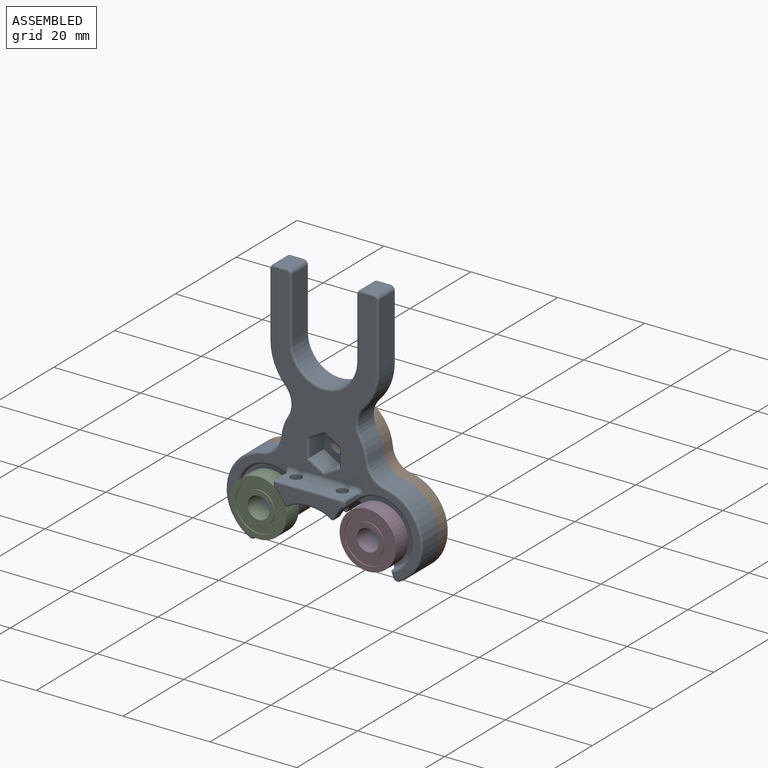
[diagram: assembled view]
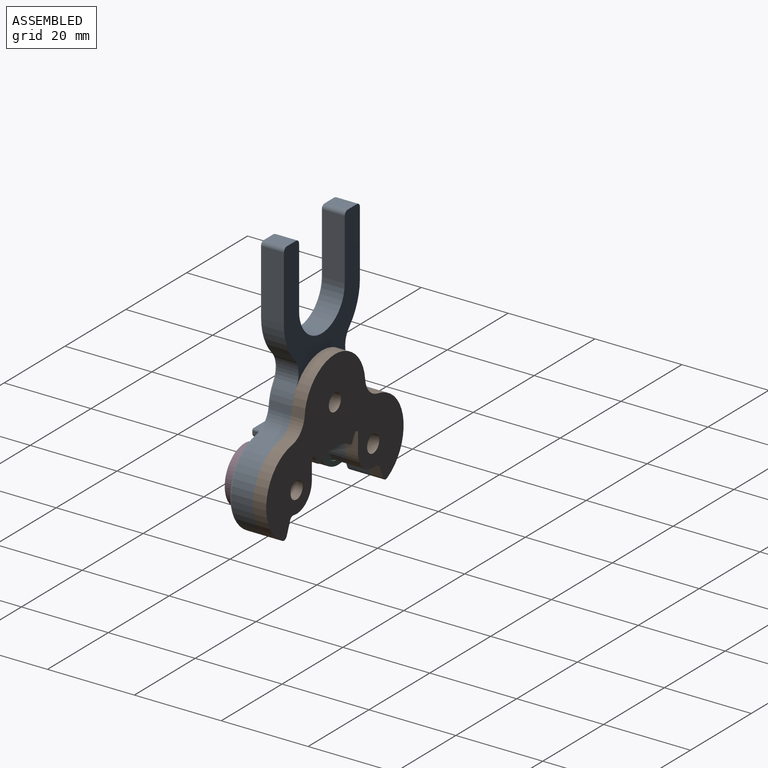
[diagram: assembled view, second angle]
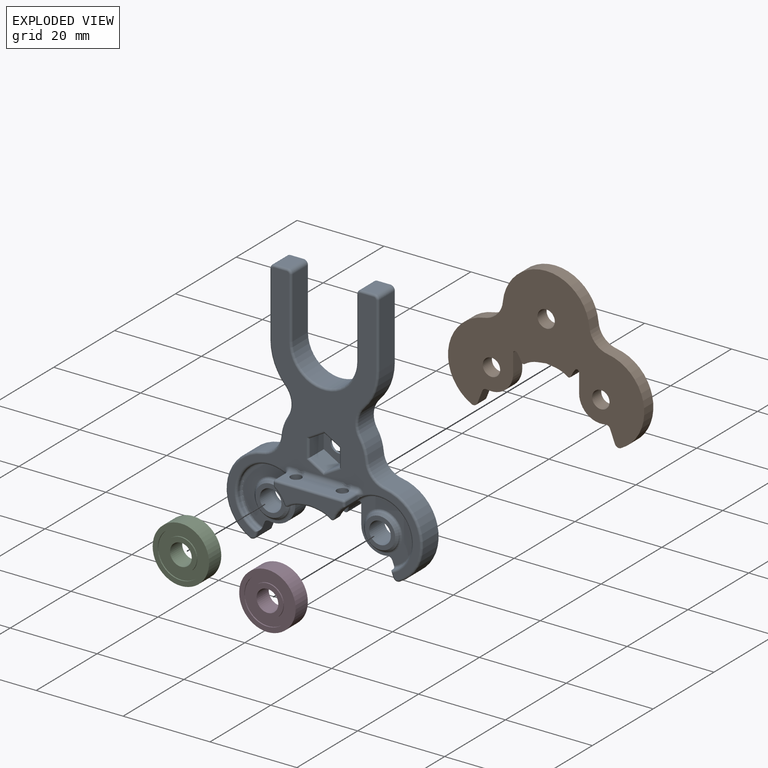
[diagram: exploded view]
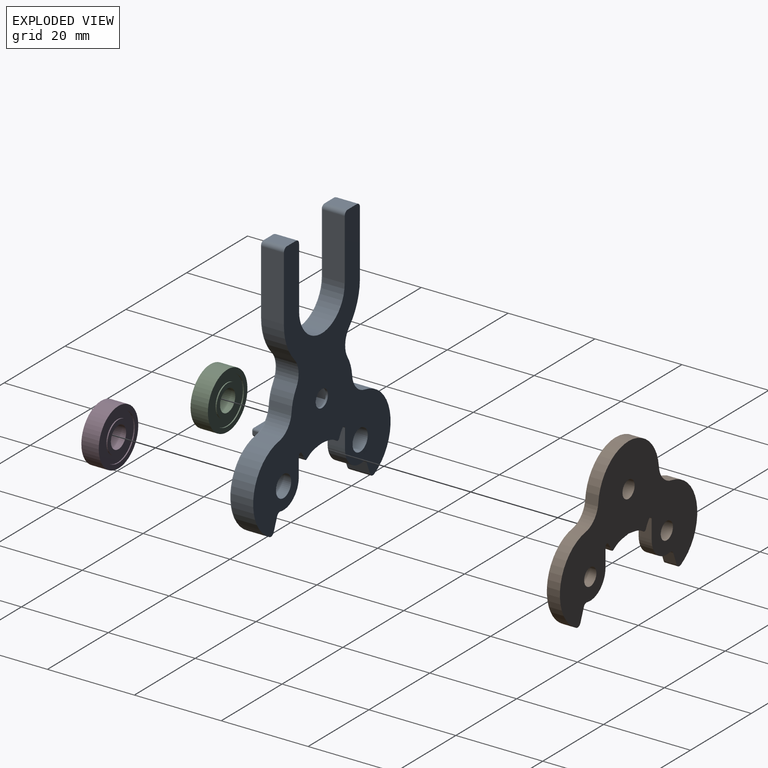
[diagram: exploded view, second angle]
ASSEMBLY  parts=4 mates=3
PART A: 138 faces, bbox 46.8x10.5x59.1 mm
  f0: cylinder r=6.5mm len=10mm, axis (0,1,0), area 30.2mm2, adj f14,f15,f26,f52,f55,f69
  f1: cylinder r=7.5mm len=14.49mm, axis (0,1,0), area 39.8mm2, adj f6,f15,f26,f52,f54,f55,f56,f65
  f2: plane 57.44x44.18mm, normal (0,-1,0), area 543.8mm2, adj f86,f87,f88,f89,f90,f91,f92,f93
  f3: cylinder r=2mm len=4mm, axis (0,1,0), area 6.3mm2, adj f15,f21
  f4: plane 4.33x4mm, normal (-1,0,0), area 17.3mm2, adj f5,f15,f16,f56
  f5: cylinder r=5mm len=6mm, axis (0,1,0), area 35.5mm2, adj f4,f15,f16,f85
  f6: plane 5x2.82mm, normal (-0.93,0,-0.36), area 13.6mm2, adj f1,f15,f16,f82,f85,f112,f116
  f7: cylinder r=10mm len=18.74mm, axis (0,1,0), area 125.2mm2, adj f15,f77,f82,f109
  f8: cylinder r=10mm len=5mm, axis (0,1,0), area 23.7mm2, adj f15,f76,f77,f107
  f9: cylinder r=12.5mm len=8.64mm, axis (0,1,0), area 47.7mm2, adj f10,f15,f76,f105
  f10: plane 14.9x5mm, normal (1,0,0), area 74.5mm2, adj f9,f15,f83,f104
  f11: plane 5x3mm, normal (0,0,1), area 15mm2, adj f15,f83,f84,f102
  f12: plane 14x5mm, normal (-1,0,0), area 70mm2, adj f13,f15,f84,f100
  f13: cylinder r=7.5mm len=15mm, axis (0,1,0), area 117.8mm2, adj f12,f15,f37,f99
  f14: plane 10x0.91mm, normal (-0.13,0,-0.99), area 9.2mm2, adj f0,f15,f71,f72
  f15: plane 58.44x45.18mm, normal (0,1,0), area 1026.7mm2, adj f0,f1,f3,f4,f5,f6,f7,f8
  f16: plane 13.53x12.18mm, normal (0,-1,0), area 60.5mm2, adj f4,f5,f6,f56,f85,f115,f116
  f17: plane 7x7mm, normal (0,-1,0), area 18.8mm2, adj f22,f131
  f18: plane 4.5x3.5mm, normal (-0.5,0,-0.87), area 18.2mm2, adj f20,f21,f41,f136
  f19: plane 4.5x3.5mm, normal (-0.5,0,0.87), area 18.2mm2, adj f20,f21,f42,f132
  f20: plane 4.5x4.04mm, normal (-1,0,0), area 18.2mm2, adj f18,f19,f21,f134
  f21: plane 8.08x7mm, normal (0,-1,0), area 29.9mm2, adj f3,f18,f19,f20,f41,f42,f43
  f22: cylinder r=2.5mm len=5mm, axis (0,-1,0), area 78.5mm2, adj f15,f17
  f23: plane 3.74x0.73mm, normal (1,0,0), area 2.6mm2, adj f53,f54,f61,f128
  f24: plane 15.46x3.5mm, normal (0,0,1), area 46.8mm2, adj f26,f46,f47,f53,f57,f121,f123,f125
  f25: plane 15.46x3.95mm, normal (0,-1,0), area 40.8mm2, adj f57,f60,f61,f64,f65,f68,f69,f70
  f26: cylinder r=1.25mm len=4.95mm, axis (0,0,1), area 33mm2, adj f0,f1,f24,f52,f55,f124
  f27: cylinder r=6.5mm len=10mm, axis (0,1,0), area 30.2mm2, adj f15,f38,f46,f50,f51,f68
  f28: cylinder r=7.5mm len=14.49mm, axis (0,1,0), area 39.8mm2, adj f15,f31,f46,f48,f49,f50,f51,f64
  f29: plane 4.33x4mm, normal (1,0,0), area 17.3mm2, adj f15,f30,f39,f49
  f30: cylinder r=5mm len=6mm, axis (0,1,0), area 35.5mm2, adj f15,f29,f39,f80
  f31: plane 5x2.82mm, normal (0.93,0,-0.36), area 13.6mm2, adj f15,f28,f39,f80,f81,f87,f113
  f32: cylinder r=10mm len=18.74mm, axis (0,1,0), area 125.2mm2, adj f15,f75,f81,f89
  f33: cylinder r=10mm len=5mm, axis (0,1,0), area 23.7mm2, adj f15,f74,f75,f91
  f34: cylinder r=12.5mm len=8.64mm, axis (0,1,0), area 47.7mm2, adj f15,f35,f74,f93
  f35: plane 14.9x5mm, normal (-1,0,0), area 74.5mm2, adj f15,f34,f78,f94
  f36: plane 5x3mm, normal (0,0,1), area 15mm2, adj f15,f78,f79,f96
  f37: plane 14x5mm, normal (1,0,0), area 70mm2, adj f13,f15,f79,f98
  f38: plane 10x0.91mm, normal (0.13,0,-0.99), area 9.2mm2, adj f15,f27,f70,f72
  f39: plane 13.53x12.18mm, normal (0,-1,0), area 60.5mm2, adj f29,f30,f31,f49,f80,f113,f114
  f40: plane 7x7mm, normal (0,-1,0), area 18.8mm2, adj f44,f130
  f41: plane 4.5x3.5mm, normal (0.5,0,-0.87), area 18.2mm2, adj f18,f21,f43,f137
  f42: plane 4.5x3.5mm, normal (0.5,0,0.87), area 18.2mm2, adj f19,f21,f43,f133
  f43: plane 4.5x4.04mm, normal (1,0,0), area 18.2mm2, adj f21,f41,f42,f135
  f44: cylinder r=2.5mm len=5mm, axis (0,-1,0), area 78.5mm2, adj f15,f40
  f45: plane 3.74x0.73mm, normal (-1,0,0), area 2.6mm2, adj f47,f48,f60,f118
  f46: cylinder r=1.25mm len=4.95mm, axis (0,0,1), area 33mm2, adj f24,f27,f28,f50,f51,f122
  f47: cylinder r=0.5mm len=3.51mm, axis (0,-1,0), area 2.7mm2, adj f24,f45,f58,f119,f120
  f48: cylinder r=0.5mm len=5mm, axis (0,1,0), area 2mm2, adj f28,f45,f62,f117
  f49: cylinder r=0.5mm len=4.5mm, axis (0,1,0), area 5.2mm2, adj f15,f28,f29,f39,f113
  f50: cylinder r=0.5mm len=5.82mm, axis (0,1,0), area 5.2mm2, adj f15,f27,f28,f46
  f51: cylinder r=0.5mm len=1.82mm, axis (0,1,0), area 1.6mm2, adj f27,f28,f46,f66
  f52: cylinder r=0.5mm len=5.82mm, axis (0,1,0), area 5.2mm2, adj f0,f1,f15,f26
  f53: cylinder r=0.5mm len=3.51mm, axis (0,-1,0), area 2.7mm2, adj f23,f24,f59,f126,f127
  f54: cylinder r=0.5mm len=5mm, axis (0,1,0), area 2mm2, adj f1,f23,f63,f129
  f55: cylinder r=0.5mm len=1.82mm, axis (0,1,0), area 1.6mm2, adj f0,f1,f26,f67
  f56: cylinder r=0.5mm len=4.5mm, axis (0,1,0), area 5.2mm2, adj f1,f4,f15,f16,f116
  f57: cylinder r=0.5mm len=15.46mm, axis (1,0,0), area 12.1mm2, adj f24,f25,f58,f59
  f58: sphere r=0.5mm, area 0.4mm2, adj f47,f57,f60
  f59: sphere r=0.5mm, area 0.4mm2, adj f53,f57,f61
  f60: cylinder r=0.5mm len=0.72mm, axis (0,0,-1), area 0.6mm2, adj f25,f45,f58,f62
  f61: cylinder r=0.5mm len=0.72mm, axis (0,0,-1), area 0.6mm2, adj f23,f25,f59,f63
  f62: sphere r=0.5mm, area 0.2mm2, adj f48,f60,f64
  f63: sphere r=0.5mm, area 0.3mm2, adj f54,f61,f65
  f64: torus R=8mm, axis (0,-1,0), area 3.1mm2, adj f25,f28,f62,f66
  f65: torus R=8mm, axis (0,-1,0), area 3.1mm2, adj f1,f25,f63,f67
  f66: sphere r=0.5mm, area 0.4mm2, adj f51,f64,f68
  f67: sphere r=0.5mm, area 0.4mm2, adj f55,f65,f69
  f68: torus R=7mm, axis (0,-1,0), area 2.6mm2, adj f25,f27,f66,f70
  f69: torus R=7mm, axis (0,-1,0), area 2.6mm2, adj f0,f25,f67,f71
  f70: cylinder r=0.5mm len=2.12mm, axis (0.99,0,0.13), area 1.1mm2, adj f25,f38,f68,f73
  f71: cylinder r=0.5mm len=2.12mm, axis (-0.99,0,0.13), area 1.1mm2, adj f14,f25,f69,f73
  f72: cylinder r=8mm len=10mm, axis (0,-1,0), area 21.6mm2, adj f14,f15,f38,f73
  f73: bspline ~2.15x0.65mm, area 1.1mm2, adj f70,f71,f72
  f74: cylinder r=5mm len=6.14mm, axis (0,-1,0), area 33.2mm2, adj f15,f33,f34,f92
  f75: cylinder r=5mm len=5mm, axis (0,-1,0), area 33mm2, adj f15,f32,f33,f90
  f76: cylinder r=5mm len=6.14mm, axis (0,-1,0), area 33.2mm2, adj f8,f9,f15,f106
  f77: cylinder r=5mm len=5mm, axis (0,-1,0), area 33mm2, adj f7,f8,f15,f108
  f78: cylinder r=1mm len=5mm, axis (0,1,0), area 7.9mm2, adj f15,f35,f36,f95
  f79: cylinder r=1mm len=5mm, axis (0,1,0), area 7.9mm2, adj f15,f36,f37,f97
  f80: cylinder r=1mm len=4mm, axis (0,1,0), area 5.6mm2, adj f15,f30,f31,f39
  f81: cylinder r=1mm len=5mm, axis (0,1,0), area 8.4mm2, adj f15,f31,f32,f88
  f82: cylinder r=1mm len=5mm, axis (0,1,0), area 8.4mm2, adj f6,f7,f15,f110
  f83: cylinder r=1mm len=5mm, axis (0,1,0), area 7.9mm2, adj f10,f11,f15,f103
  f84: cylinder r=1mm len=5mm, axis (0,1,0), area 7.9mm2, adj f11,f12,f15,f101
  f85: cylinder r=1mm len=4mm, axis (0,1,0), area 5.6mm2, adj f5,f6,f15,f16
  f86: torus R=8mm, axis (0,-1,0), area 19.7mm2, adj f2,f28,f87,f117,f118,f119
  f87: cylinder r=0.5mm len=1.53mm, axis (0.36,0,0.93), area 0.9mm2, adj f2,f31,f86,f88
  f88: torus R=0.5mm, axis (0,-1,0), area 1.1mm2, adj f2,f81,f87,f89
  f89: torus R=9.5mm, axis (0,-1,0), area 19.3mm2, adj f2,f32,f88,f90
  f90: torus R=5.5mm, axis (0,-1,0), area 5.4mm2, adj f2,f75,f89,f91
  f91: torus R=9.5mm, axis (0,-1,0), area 3.7mm2, adj f2,f33,f90,f92
  f92: torus R=5.5mm, axis (0,-1,0), area 5.4mm2, adj f2,f74,f91,f93
  f93: torus R=12mm, axis (0,-1,0), area 7.4mm2, adj f2,f34,f92,f94
  f94: cylinder r=0.5mm len=14.9mm, axis (0,0,-1), area 11.7mm2, adj f2,f35,f93,f95
  f95: torus R=0.5mm, axis (0,-1,0), area 1mm2, adj f2,f78,f94,f96
  f96: cylinder r=0.5mm len=3mm, axis (-1,0,0), area 2.4mm2, adj f2,f36,f95,f97
  f97: torus R=0.5mm, axis (0,-1,0), area 1mm2, adj f2,f79,f96,f98
  f98: cylinder r=0.5mm len=14mm, axis (0,0,1), area 11mm2, adj f2,f37,f97,f99
  f99: torus R=8mm, axis (0,-1,0), area 19mm2, adj f2,f13,f98,f100
  f100: cylinder r=0.5mm len=14mm, axis (0,0,1), area 11mm2, adj f2,f12,f99,f101
  f101: torus R=0.5mm, axis (0,-1,0), area 1mm2, adj f2,f84,f100,f102
  f102: cylinder r=0.5mm len=3mm, axis (1,0,0), area 2.4mm2, adj f2,f11,f101,f103
  f103: torus R=0.5mm, axis (0,-1,0), area 1mm2, adj f2,f83,f102,f104
  f104: cylinder r=0.5mm len=14.9mm, axis (0,0,-1), area 11.7mm2, adj f2,f10,f103,f105
  f105: torus R=12mm, axis (0,-1,0), area 7.4mm2, adj f2,f9,f104,f106
  f106: torus R=5.5mm, axis (0,-1,0), area 5.4mm2, adj f2,f76,f105,f107
  f107: torus R=9.5mm, axis (0,-1,0), area 3.7mm2, adj f2,f8,f106,f108
  f108: torus R=5.5mm, axis (0,-1,0), area 5.4mm2, adj f2,f77,f107,f109
  f109: torus R=9.5mm, axis (0,-1,0), area 19.3mm2, adj f2,f7,f108,f110
  f110: torus R=0.5mm, axis (0,-1,0), area 1.1mm2, adj f2,f82,f109,f112
  f111: torus R=8mm, axis (0,-1,0), area 19.7mm2, adj f1,f2,f112,f127,f128,f129
  f112: cylinder r=0.5mm len=1.53mm, axis (-0.36,0,0.93), area 0.9mm2, adj f2,f6,f110,f111
  f113: torus R=7mm, axis (0,-1,0), area 20.9mm2, adj f28,f31,f39,f49
  f114: torus R=4.5mm, axis (0,-1,0), area 20.6mm2, adj f39,f130
  f115: torus R=4.5mm, axis (0,-1,0), area 20.6mm2, adj f16,f131
  f116: torus R=7mm, axis (0,-1,0), area 20.9mm2, adj f1,f6,f16,f56
  f117: bspline ~1.38x1mm, area 0.7mm2, adj f48,f86,f118
  f118: bspline ~1.42x1.15mm, area 0.7mm2, adj f45,f86,f117,f119
  f119: bspline ~1.02x1.01mm, area 0.1mm2, adj f47,f86,f118,f120
  f120: torus R=1.5mm, axis (0,-1,0), area 2mm2, adj f2,f47,f119,f121
  f121: cylinder r=1mm len=1.25mm, axis (-1,0,0), area 2mm2, adj f2,f24,f120,f122
  f122: bspline ~2.66x1.07mm, area 2.4mm2, adj f2,f46,f121,f123
  f123: cylinder r=1mm len=8.36mm, axis (-1,0,0), area 13.1mm2, adj f2,f24,f122,f124
  f124: bspline ~2.66x1.07mm, area 2.4mm2, adj f2,f26,f123,f125
  f125: cylinder r=1mm len=1.25mm, axis (-1,0,0), area 2mm2, adj f2,f24,f124,f126
  f126: torus R=1.5mm, axis (0,-1,0), area 2mm2, adj f2,f53,f125,f127
  f127: bspline ~1.03x1.03mm, area 0.1mm2, adj f53,f111,f126,f128
  f128: bspline ~1.21x1.15mm, area 0.7mm2, adj f23,f111,f127,f129
  f129: bspline ~1.38x1mm, area 0.7mm2, adj f54,f111,f128
  f130: cone r=4mm half-angle=45deg, axis (0,1,0), area 16.7mm2, adj f40,f114
  f131: cone r=3.5mm half-angle=45deg, axis (0,1,0), area 16.7mm2, adj f17,f115
  f132: cylinder r=0.5mm len=4.25mm, axis (-0.87,0,-0.5), area 3.4mm2, adj f2,f19,f133,f134
  f133: cylinder r=0.5mm len=4.25mm, axis (0.87,0,-0.5), area 3.4mm2, adj f2,f42,f132,f135
  f134: cylinder r=0.5mm len=4.62mm, axis (0,0,-1), area 3.4mm2, adj f2,f20,f132,f136
  f135: cylinder r=0.5mm len=4.62mm, axis (0,0,-1), area 3.4mm2, adj f2,f43,f133,f137
  f136: cylinder r=0.5mm len=4.25mm, axis (0.87,0,-0.5), area 3.4mm2, adj f2,f18,f134,f137
  f137: cylinder r=0.5mm len=4.25mm, axis (-0.87,0,-0.5), area 3.4mm2, adj f2,f41,f135,f136
PART B: 30 faces, bbox 45.2x3x32.4 mm
  f0: plane 4.33x3mm, normal (-1,0,0), area 13mm2, adj f1,f14,f15,f16
  f1: cylinder r=5mm len=6mm, axis (0,1,0), area 26.6mm2, adj f0,f2,f15,f16
  f2: cylinder r=1mm len=3mm, axis (0,1,0), area 4.2mm2, adj f1,f3,f15,f16
  f3: plane 3x2.82mm, normal (-0.93,0,-0.36), area 9.1mm2, adj f2,f4,f15,f16
  f4: cylinder r=1mm len=3mm, axis (0,1,0), area 5mm2, adj f3,f5,f15,f16
  f5: cylinder r=10mm len=18.74mm, axis (0,1,0), area 75.1mm2, adj f4,f6,f15,f16
  f6: cylinder r=5mm len=4.47mm, axis (0,1,0), area 19.8mm2, adj f5,f7,f15,f16
  f7: cylinder r=10mm len=19.91mm, axis (0,1,0), area 88.7mm2, adj f6,f15,f16,f23
  f8: cylinder r=2mm len=4mm, axis (0,1,0), area 37.7mm2, adj f15,f16
  f9: plane 3x1.99mm, normal (-0.13,0,-0.99), area 6mm2, adj f10,f15,f16,f24
  f10: cylinder r=6.5mm len=3mm, axis (0,1,0), area 9.6mm2, adj f9,f11,f15,f16
  f11: cylinder r=0.5mm len=3mm, axis (0,1,0), area 2.7mm2, adj f10,f12,f15,f16
  f12: cylinder r=7.5mm len=3mm, axis (0,1,0), area 6mm2, adj f11,f14,f15,f16
  f13: cylinder r=2mm len=4mm, axis (0,1,0), area 37.7mm2, adj f15,f16
  f14: cylinder r=0.5mm len=3mm, axis (0,1,0), area 3.7mm2, adj f0,f12,f15,f16
  f15: plane 45.18x32.4mm, normal (0,-1,0), area 717.1mm2, adj f0,f1,f2,f3,f4,f5,f6,f7
  f16: plane 45.18x32.4mm, normal (0,1,0), area 717.1mm2, adj f0,f1,f2,f3,f4,f5,f6,f7
  f17: plane 4.33x3mm, normal (1,0,0), area 13mm2, adj f15,f16,f18,f29
  f18: cylinder r=5mm len=6mm, axis (0,1,0), area 26.6mm2, adj f15,f16,f17,f19
  f19: cylinder r=1mm len=3mm, axis (0,1,0), area 4.2mm2, adj f15,f16,f18,f20
  f20: plane 3x2.82mm, normal (0.93,0,-0.36), area 9.1mm2, adj f15,f16,f19,f21
  f21: cylinder r=1mm len=3mm, axis (0,1,0), area 5mm2, adj f15,f16,f20,f22
  f22: cylinder r=10mm len=18.74mm, axis (0,1,0), area 75.1mm2, adj f15,f16,f21,f23
  f23: cylinder r=5mm len=4.47mm, axis (0,1,0), area 19.8mm2, adj f7,f15,f16,f22
  f24: plane 3x1.99mm, normal (0.13,0,-0.99), area 6mm2, adj f9,f15,f16,f25
  f25: cylinder r=6.5mm len=3mm, axis (0,1,0), area 9.6mm2, adj f15,f16,f24,f26
  f26: cylinder r=0.5mm len=3mm, axis (0,1,0), area 2.7mm2, adj f15,f16,f25,f27
  f27: cylinder r=7.5mm len=3mm, axis (0,1,0), area 6mm2, adj f15,f16,f26,f29
  f28: cylinder r=2mm len=4mm, axis (0,1,0), area 37.7mm2, adj f15,f16
  f29: cylinder r=0.5mm len=3mm, axis (0,1,0), area 3.7mm2, adj f15,f16,f17,f27
PART C: 12 faces, bbox 13x4x13 mm
  f0: cylinder r=3.65mm len=7.3mm, axis (0,1,0), area 5.7mm2, adj f4,f11
  f1: cylinder r=2.5mm len=5mm, axis (0,1,0), area 62.8mm2, adj f3,f4
  f2: cylinder r=3.65mm len=7.3mm, axis (0,1,0), area 5.7mm2, adj f3,f10
  f3: plane 7.3x7.3mm, normal (0,-1,0), area 22.2mm2, adj f1,f2
  f4: plane 7.3x7.3mm, normal (0,1,0), area 22.2mm2, adj f0,f1
  f5: cylinder r=5.35mm len=10.7mm, axis (0,1,0), area 8.4mm2, adj f9,f11
  f6: cylinder r=5.35mm len=10.7mm, axis (0,1,0), area 8.4mm2, adj f8,f10
  f7: cylinder r=6.5mm len=13mm, axis (0,1,0), area 163.4mm2, adj f8,f9
  f8: plane 13x13mm, normal (0,-1,0), area 42.8mm2, adj f6,f7
  f9: plane 13x13mm, normal (0,1,0), area 42.8mm2, adj f5,f7
  f10: plane 10.7x10.7mm, normal (0,-1,0), area 48.1mm2, adj f2,f6
  f11: plane 10.7x10.7mm, normal (0,1,0), area 48.1mm2, adj f0,f5
PART D: same geometry as C
PLACE A t=(12.63,5,-2.38)mm
PLACE B t=(12.63,5,-2.38)mm fixed
PLACE C rot(axis=(1,0,0),180deg) t=(0.04,-5,0.2)mm
PLACE D rot(axis=(-0.39,0,-0.92),180deg) t=(25.22,-5,0.2)mm
MATE fastened A.f3 <-> B.f7  axis (0,1,0) through (12.63,2,13.62)mm
MATE revolute C.f0 <-> A.f28  axis (0,1,0) through (0.04,-3,0.2)mm
MATE revolute D.f0 <-> A.f1  axis (0,1,0) through (25.22,-3,0.2)mm
